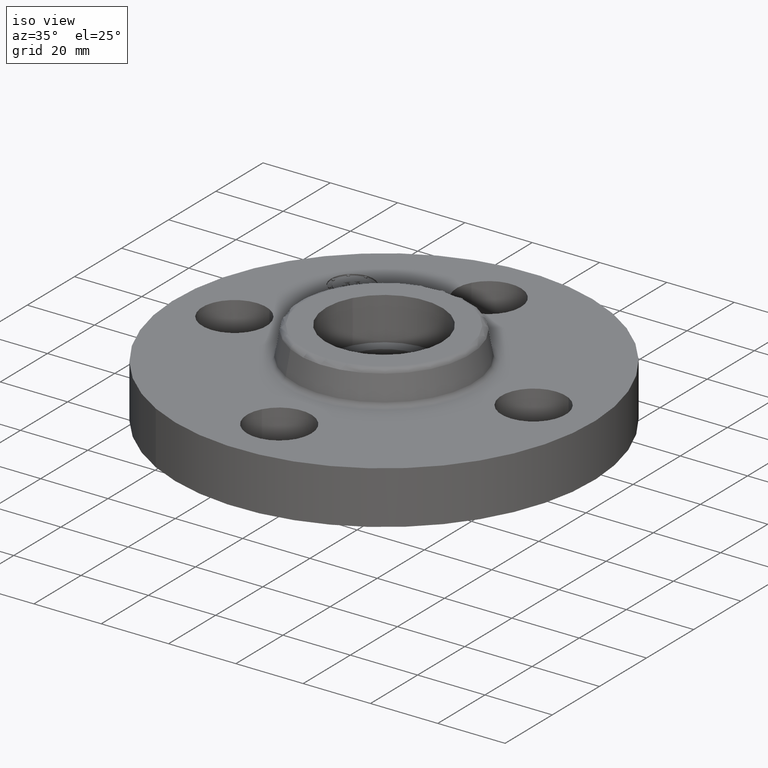
[diagram: clean part render]
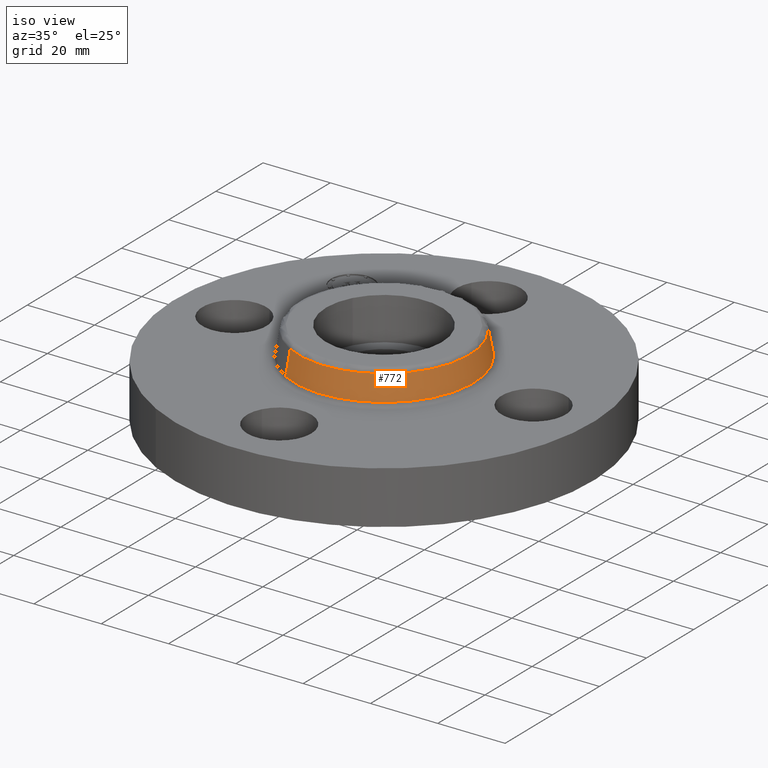
[diagram: same view with one face highlighted and labeled with its STEP entity id]
A machine part, iso view. The second image highlights one B-rep face of the part: STEP entity #772.
In plain terms, the highlighted conical surface has half-angle 10 deg.
Its self-contained STEP definition (entity closure, byte-faithful):
#665=AXIS2_PLACEMENT_3D('Circle Axis2P3D',#663,#664,$) ;
#745=AXIS2_PLACEMENT_3D('Cone Axis2P3D',#742,#743,#744) ;
#756=AXIS2_PLACEMENT_3D('Circle Axis2P3D',#754,#755,$) ;
#660=CARTESIAN_POINT('Vertex',(0.503999699235,0.922565261197,0.669581109343)) ;
#663=CARTESIAN_POINT('Axis2P3D Location',(0.,0.,0.669581109343)) ;
#667=CARTESIAN_POINT('Vertex',(-0.503999699235,-0.922565261197,0.669581109343)) ;
#742=CARTESIAN_POINT('Axis2P3D Location',(0.,0.,0.950418890664)) ;
#747=CARTESIAN_POINT('Line Origine',(0.49212929596,0.90083663375,0.810000000003)) ;
#751=CARTESIAN_POINT('Vertex',(0.480258892685,0.879108006303,0.950418890664)) ;
#754=CARTESIAN_POINT('Axis2P3D Location',(0.,0.,0.950418890664)) ;
#758=CARTESIAN_POINT('Vertex',(-0.480258892685,-0.879108006303,0.950418890664)) ;
#761=CARTESIAN_POINT('Line Origine',(-0.49212929596,-0.90083663375,0.810000000003)) ;
#664=DIRECTION('Axis2P3D Direction',(0.,0.,-0.0393700787402)) ;
#743=DIRECTION('Axis2P3D Direction',(0.,0.,-0.0393700787402)) ;
#744=DIRECTION('Axis2P3D XDirection',(-0.0188750212049,-0.0345504945626,0.)) ;
#748=DIRECTION('Vector Direction',(0.00327761303565,0.00599963041829,-0.03877195878)) ;
#755=DIRECTION('Axis2P3D Direction',(0.,0.,-0.0393700787402)) ;
#762=DIRECTION('Vector Direction',(-0.00327761303565,-0.00599963041829,-0.03877195878)) ;
#749=VECTOR('Line Direction',#748,0.0393700787402) ;
#763=VECTOR('Line Direction',#762,0.0393700787402) ;
#767=ORIENTED_EDGE('',*,*,#669,.F.) ;
#768=ORIENTED_EDGE('',*,*,#753,.T.) ;
#769=ORIENTED_EDGE('',*,*,#760,.T.) ;
#770=ORIENTED_EDGE('',*,*,#765,.F.) ;
#772=ADVANCED_FACE('PartBody',(#771),#746,.T.) ;
#666=CIRCLE('generated circle',#665,1.05125751269) ;
#757=CIRCLE('generated circle',#756,1.00173823464) ;
#746=CONICAL_SURFACE('Cone',#745,1.00173823464,0.174532925199) ;
#669=EDGE_CURVE('',#661,#668,#666,.T.) ;
#753=EDGE_CURVE('',#661,#752,#750,.F.) ;
#760=EDGE_CURVE('',#752,#759,#757,.T.) ;
#765=EDGE_CURVE('',#668,#759,#764,.F.) ;
#766=EDGE_LOOP('',(#767,#768,#769,#770)) ;
#771=FACE_OUTER_BOUND('',#766,.T.) ;
#750=LINE('Line',#747,#749) ;
#764=LINE('Line',#761,#763) ;
#661=VERTEX_POINT('',#660) ;
#668=VERTEX_POINT('',#667) ;
#752=VERTEX_POINT('',#751) ;
#759=VERTEX_POINT('',#758) ;